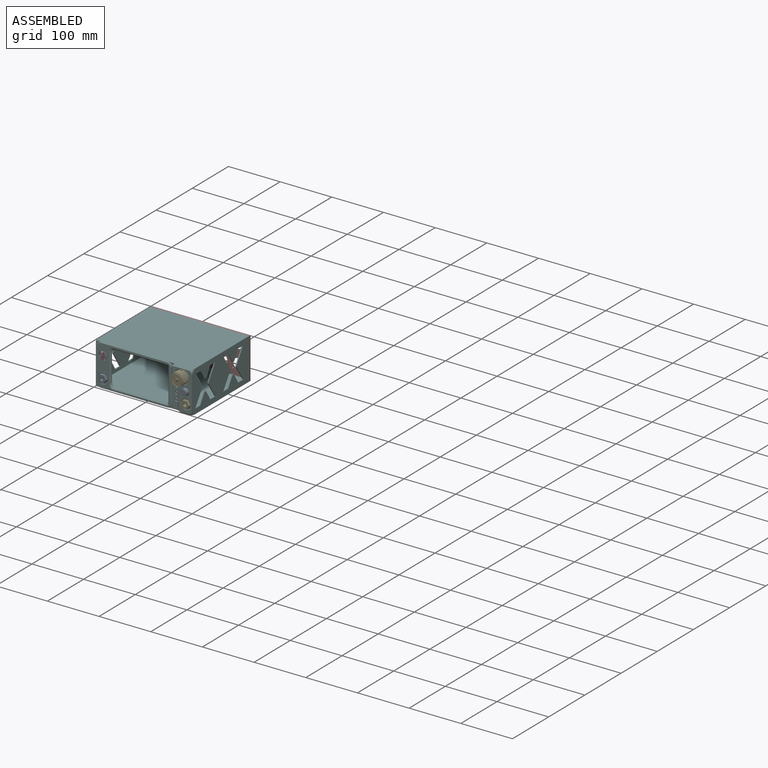
[diagram: assembled view]
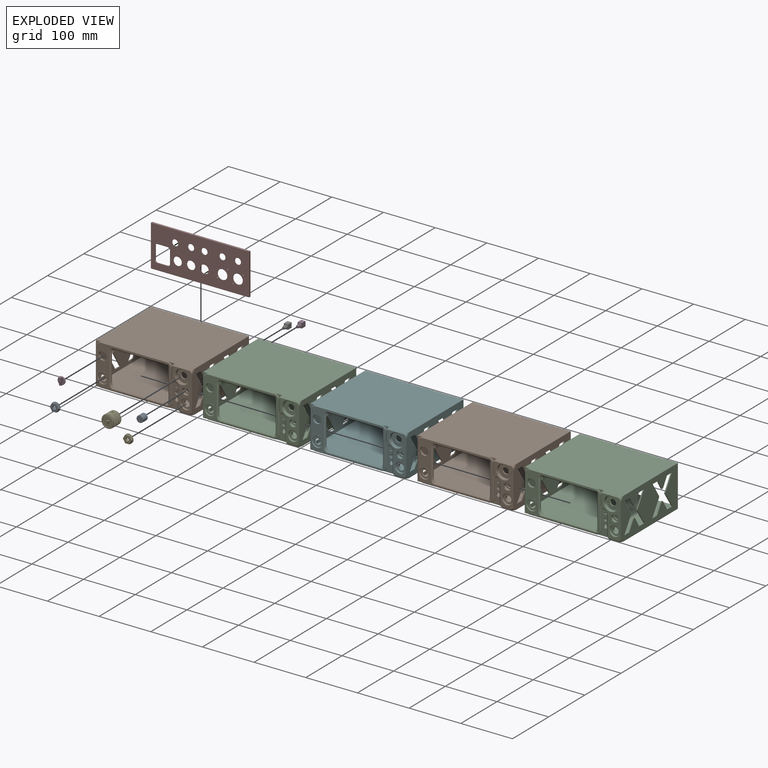
[diagram: exploded view]
GUIDED TOUR — MATED ASSEMBLY (Onshape document 111cd179a44cc27a1ac8d6d5, AutoMate assembly 111cd179a44cc27a1ac8d6d5_bd920d4d7e22fbe078162569_21dfc117eb1a0b96625b1ef3_default)

This assembly has 13 components, labeled P0..P12 below (a component is one placed occurrence of a part; the same part can appear more than once), held together by 8 mates. A mate is a constraint between two components; its type names the relative motion it leaves free:
  FASTENED — locks the two components together rigidly (no relative motion),
  SLIDER — leaves translation along the listed axis free.
Axis/direction vectors are unit vectors and 'through' points are millimeter coordinates, both in the assembly's world frame.

MATES
  1. FASTENED "Fastened 2": P11 <-> P1, direction (0.000, 1.000, 0.000) through (-80.38, 0.00, 16.98) mm
  2. SLIDER "Slider 5": P3 <-> P1, axis (0.000, -1.000, 0.000) through (61.45, -2.00, -22.34) mm
  3. SLIDER "Slider 6": P4 <-> P1, axis (0.000, 1.000, 0.000) through (75.67, -2.00, 23.46) mm
  4. FASTENED "Fastened 1": P7 <-> P1, direction (0.000, 0.000, 1.000) through (-95.00, 150.00, 0.00) mm
  5. SLIDER "Slider 4": P6 <-> P1, axis (0.000, -1.000, 0.000) through (61.43, -2.00, -10.02) mm
  6. SLIDER "Slider 2": P8 <-> P1, axis (0.000, 1.000, 0.000) through (82.98, -2.00, -0.24) mm
  7. SLIDER "Slider 3": P12 <-> P1, axis (0.000, 1.000, 0.000) through (82.97, -6.00, -22.51) mm
  8. SLIDER "Slider 1": P0 <-> P1, axis (0.000, 1.000, 0.000) through (-80.38, -2.00, -22.56) mm

ASSEMBLY ORDER
  1. P1 — the base component [order heuristic]
  2. P2 — core [order heuristic]
  3. P5 — core [order heuristic]
  4. P8 — core [order heuristic]
  5. P9 — core [order heuristic]
  6. P10 — core [order heuristic]
  7. P6 [order verified]
  8. P3 [order verified]
  9. P11 [order verified]
  10. P0 [order verified]
  11. P12 [order verified]
  12. P4 [order verified]
  13. P7 [order verified]
Order-tag legend:
  [order verified] — this step's position reverses a verified removal order: the component was checked to insert without passing through the ones already placed.
  [order heuristic] — the first 6 components form the assembly's core: parts whose collision-free extraction could not be verified, listed in mate-graph order.

Of the 13 components, 1 carries the full construction recipe — the FeatureScript program that regenerates the part's solid from scratch; the rest are supplied as boundary geometry only.
Because this assembly has more than 12 components, the tour below covers the 12 most significant ones individually (every recipe-attached component first, then the largest by part volume), in assembly order; the remaining 1 are summarized together in a grouped section at the end.
Each toured component is shown spotlighted twice — in the assembled view, then in the exploded view, where a leader line traces a displaced component back to its assembled socket (saturated green if recipe-attached, orange if geometry-only; every other component desaturated gray) — followed by its recipe or geometry summary and the mates that hold it.
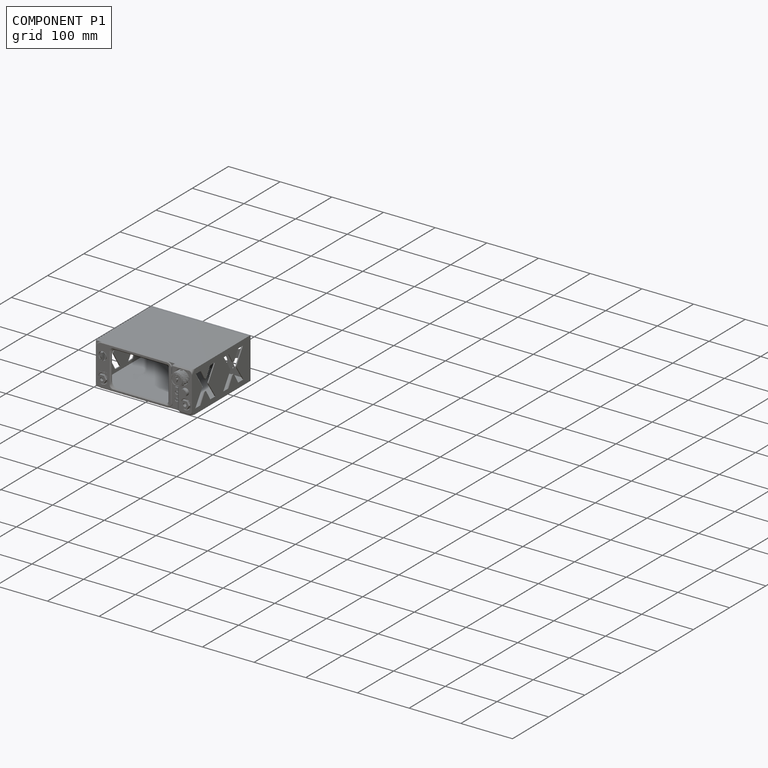
[diagram: component P1 — assembled]
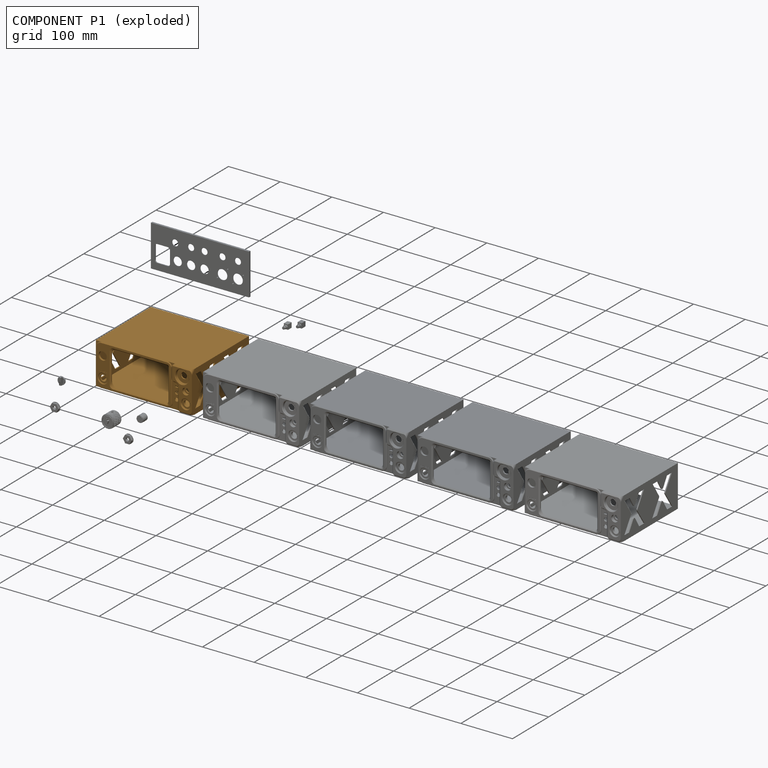
[diagram: component P1 — exploded]
COMPONENT P1 — geometry summary (no construction recipe available for this part):
  bounding box: 190.1 x 161.6 x 86.1 mm
  B-rep topology: 1 solid, 462 faces, 2690 edges
  volume: 290501 mm^3 (11% of its bounding box)
Held by: FASTENED mate "Fastened 2" to P11; SLIDER mate "Slider 5" to P3; SLIDER mate "Slider 6" to P4; FASTENED mate "Fastened 1" to P7; SLIDER mate "Slider 4" to P6; SLIDER mate "Slider 2" to P8; SLIDER mate "Slider 3" to P12; SLIDER mate "Slider 1" to P0.
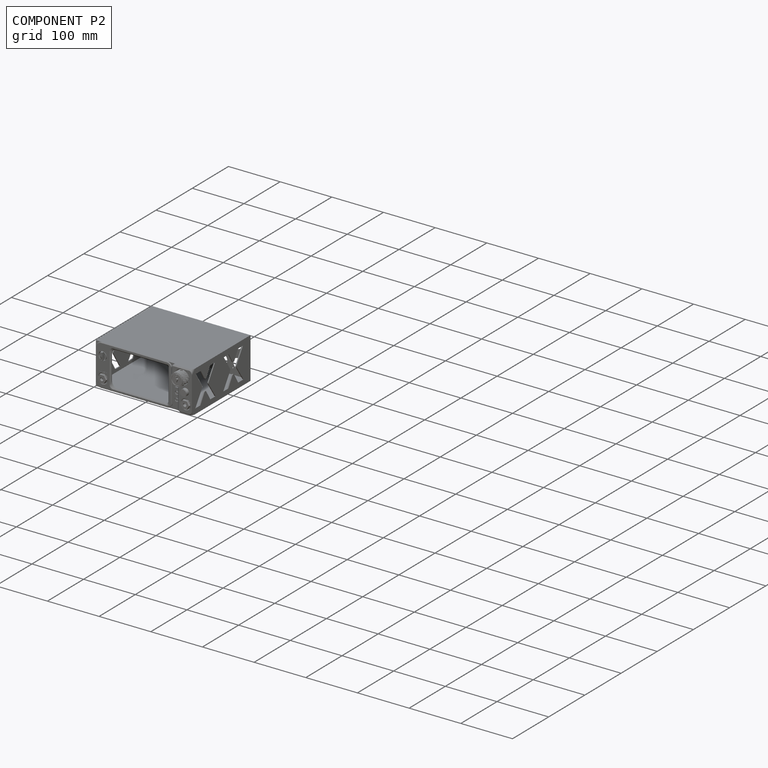
[diagram: component P2 — assembled]
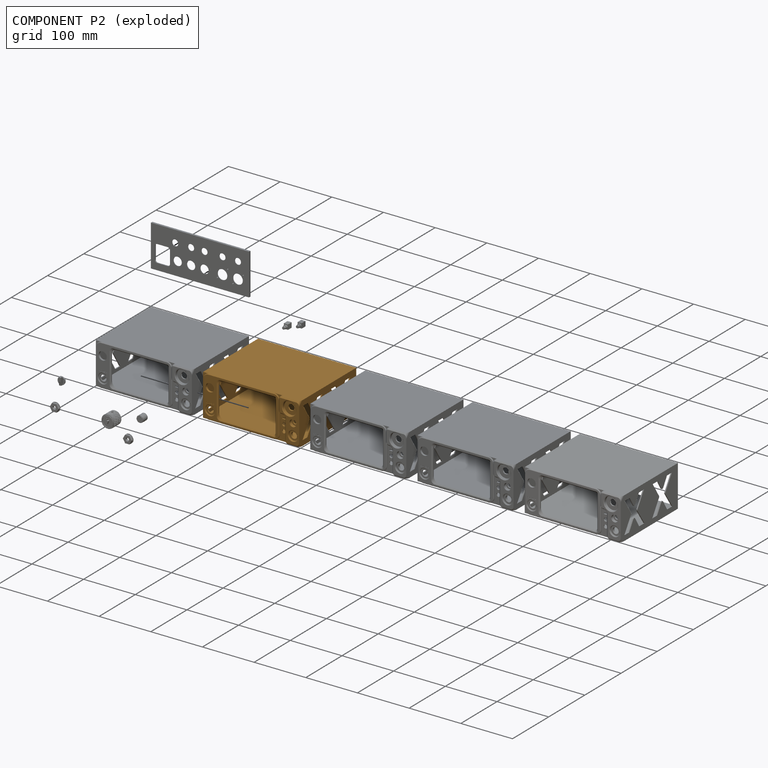
[diagram: component P2 — exploded]
COMPONENT P2 — geometry summary (no construction recipe available for this part):
  bounding box: 190.1 x 161.6 x 86.1 mm
  B-rep topology: 1 solid, 462 faces, 2690 edges
  volume: 290501 mm^3 (11% of its bounding box)
Held by: no mates (free).
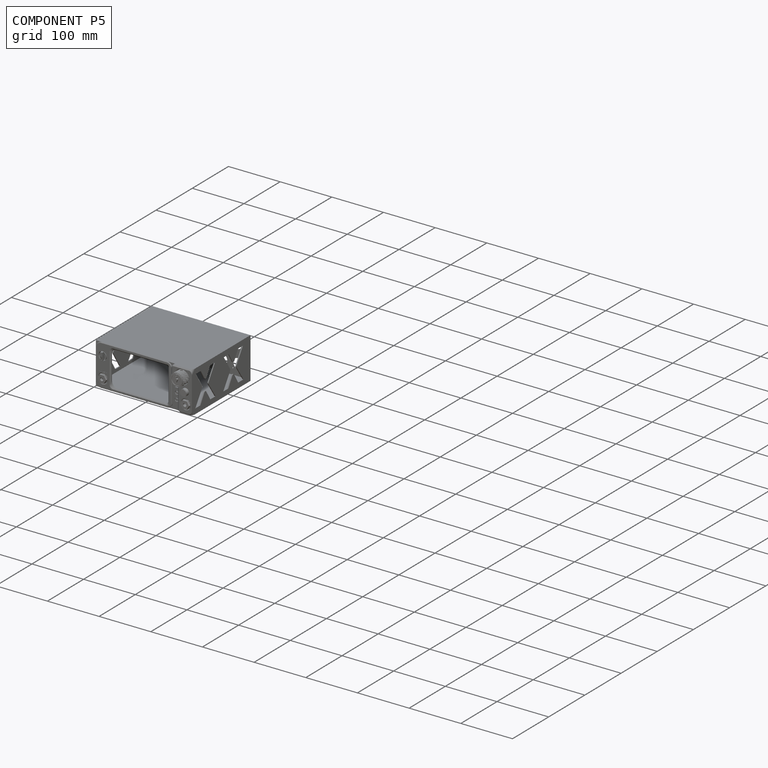
[diagram: component P5 — assembled]
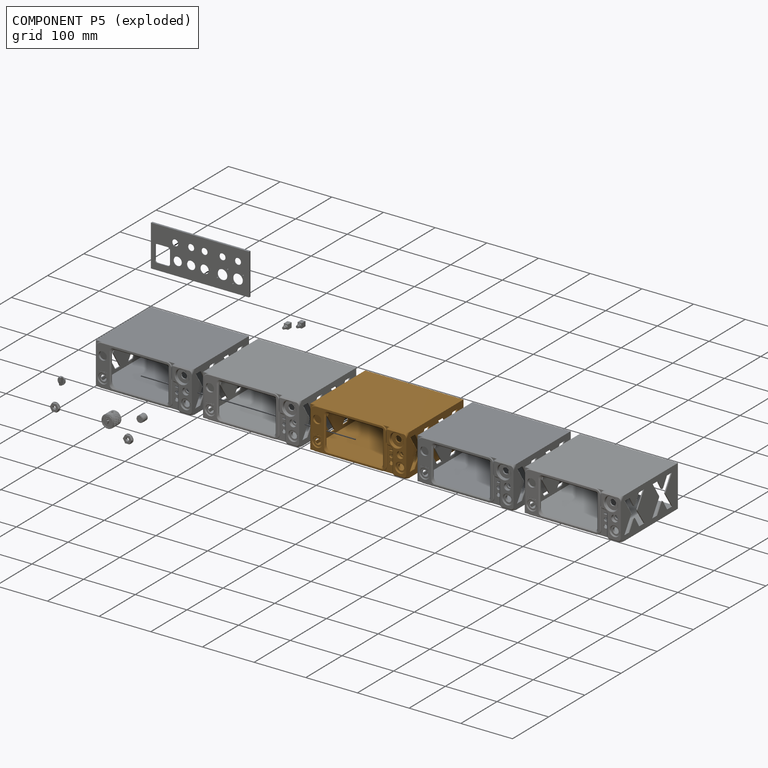
[diagram: component P5 — exploded]
COMPONENT P5 — geometry summary (no construction recipe available for this part):
  bounding box: 190.1 x 161.6 x 86.1 mm
  B-rep topology: 1 solid, 462 faces, 2690 edges
  volume: 290501 mm^3 (11% of its bounding box)
Held by: no mates (free).
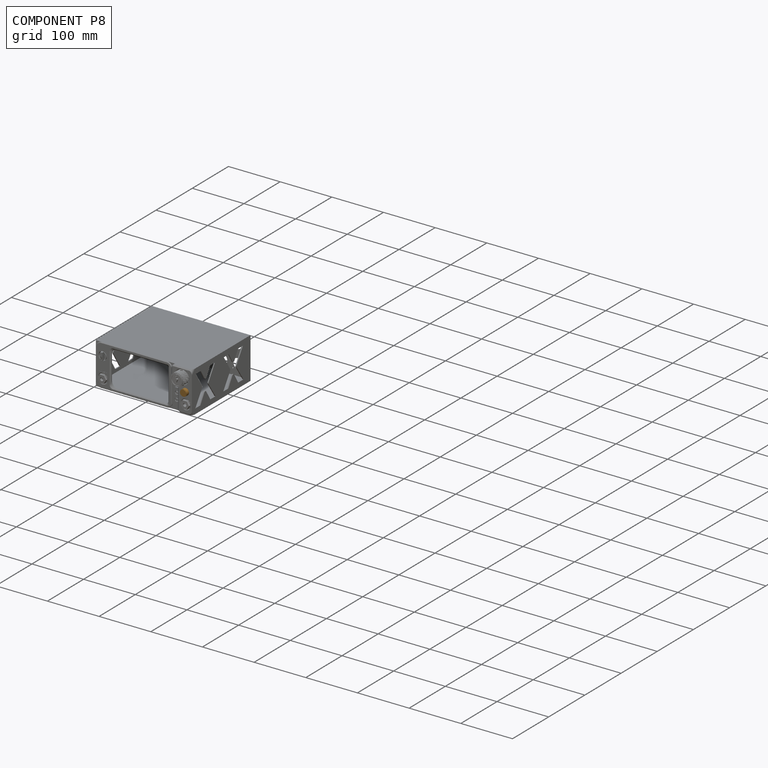
[diagram: component P8 — assembled]
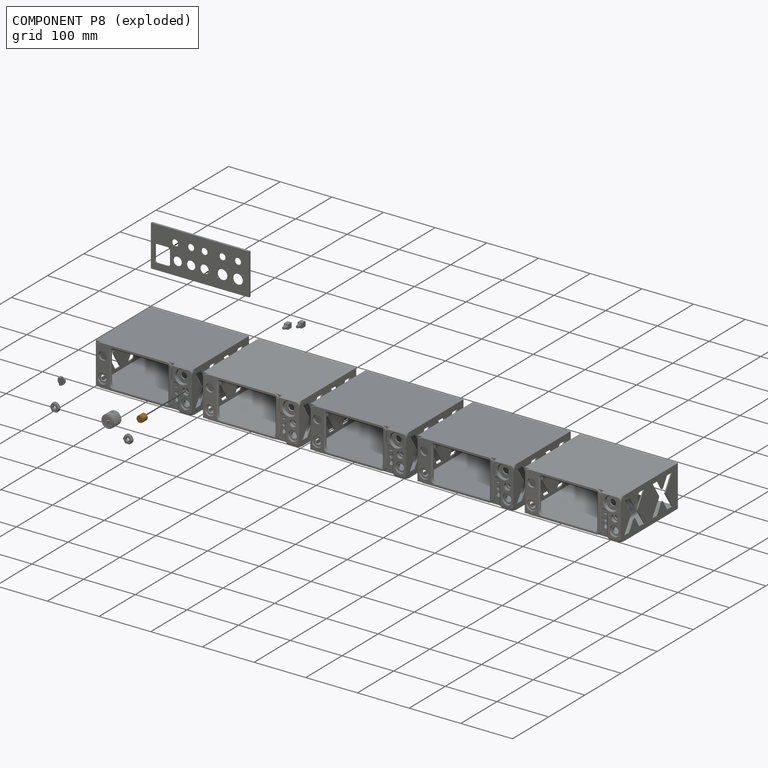
[diagram: component P8 — exploded]
COMPONENT P8 — geometry summary (no construction recipe available for this part):
  bounding box: 13.0 x 13.0 x 13.0 mm
  B-rep topology: 1 solid, 11 faces, 52 edges
  volume: 1611 mm^3 (73% of its bounding box)
Held by: SLIDER mate "Slider 2" to P1.
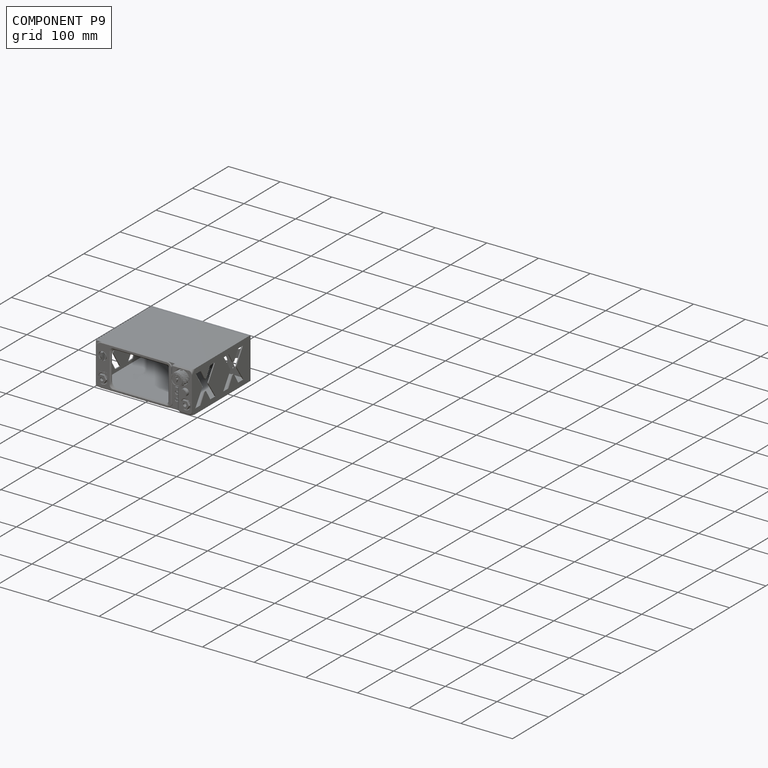
[diagram: component P9 — assembled]
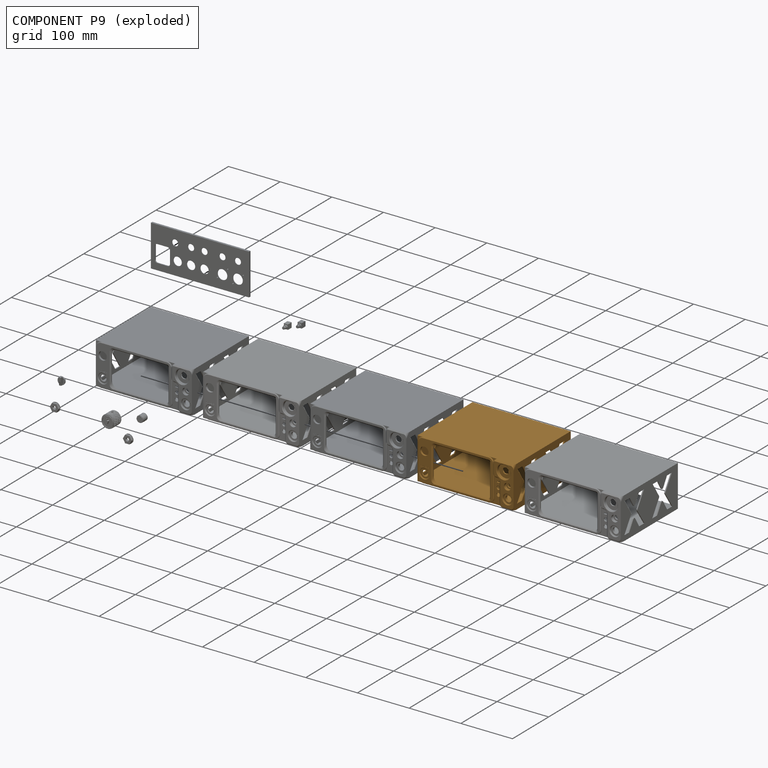
[diagram: component P9 — exploded]
COMPONENT P9 — geometry summary (no construction recipe available for this part):
  bounding box: 190.1 x 161.6 x 86.1 mm
  B-rep topology: 1 solid, 462 faces, 2690 edges
  volume: 290501 mm^3 (11% of its bounding box)
Held by: no mates (free).
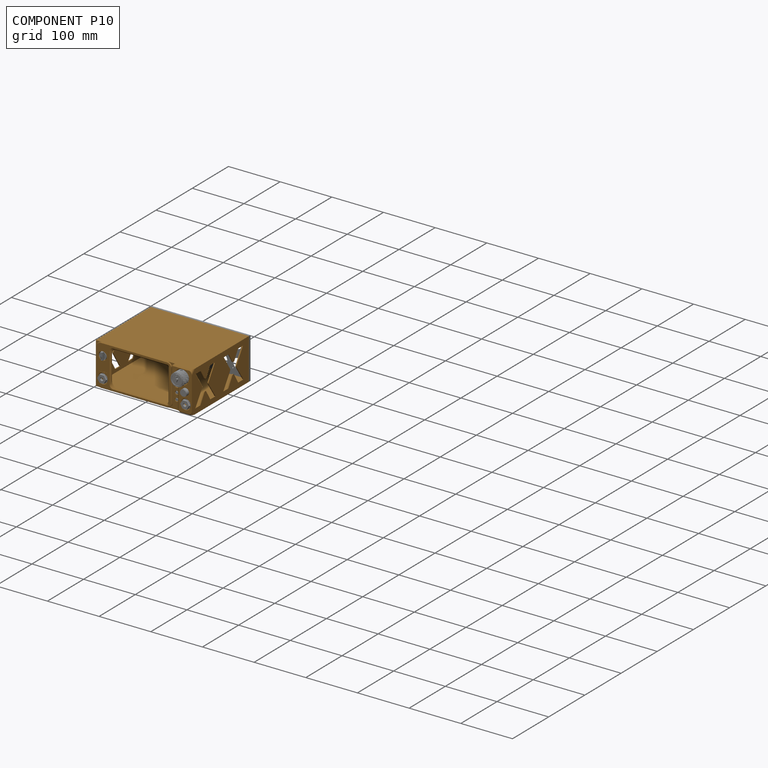
[diagram: component P10 — assembled]
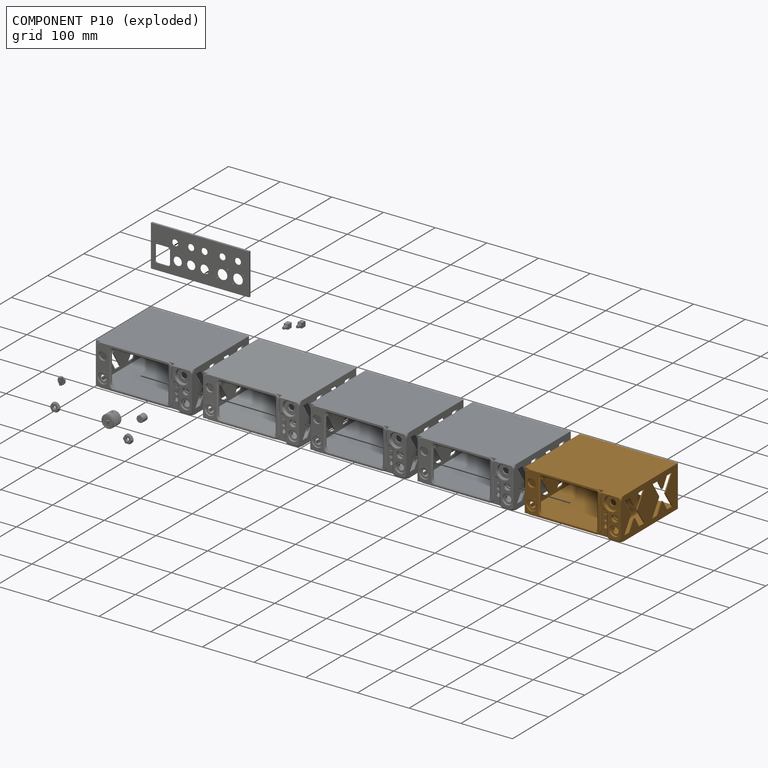
[diagram: component P10 — exploded]
COMPONENT P10 — geometry summary (no construction recipe available for this part):
  bounding box: 190.1 x 161.6 x 86.1 mm
  B-rep topology: 1 solid, 462 faces, 2690 edges
  volume: 290501 mm^3 (11% of its bounding box)
Held by: no mates (free).
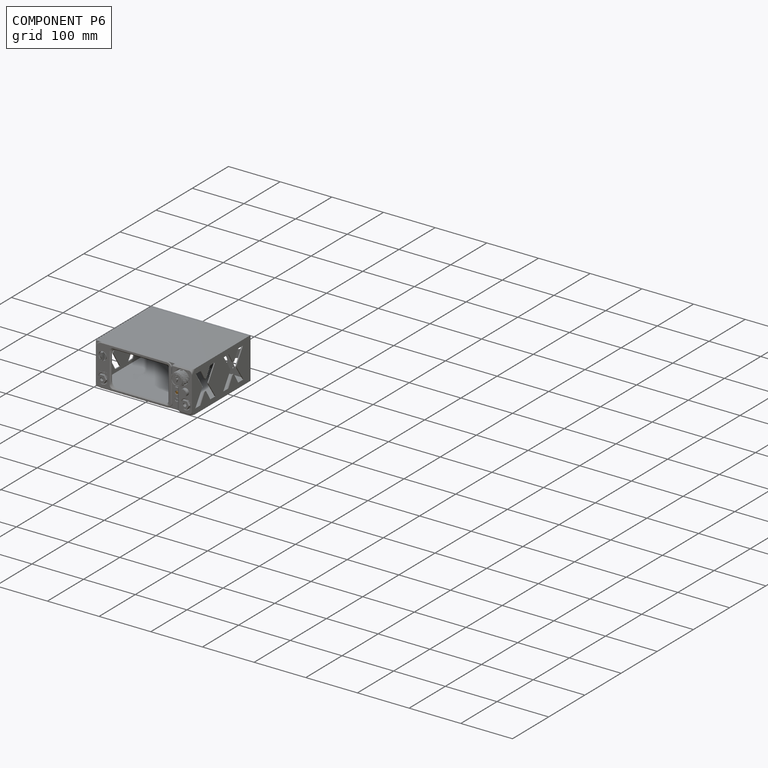
[diagram: component P6 — assembled]
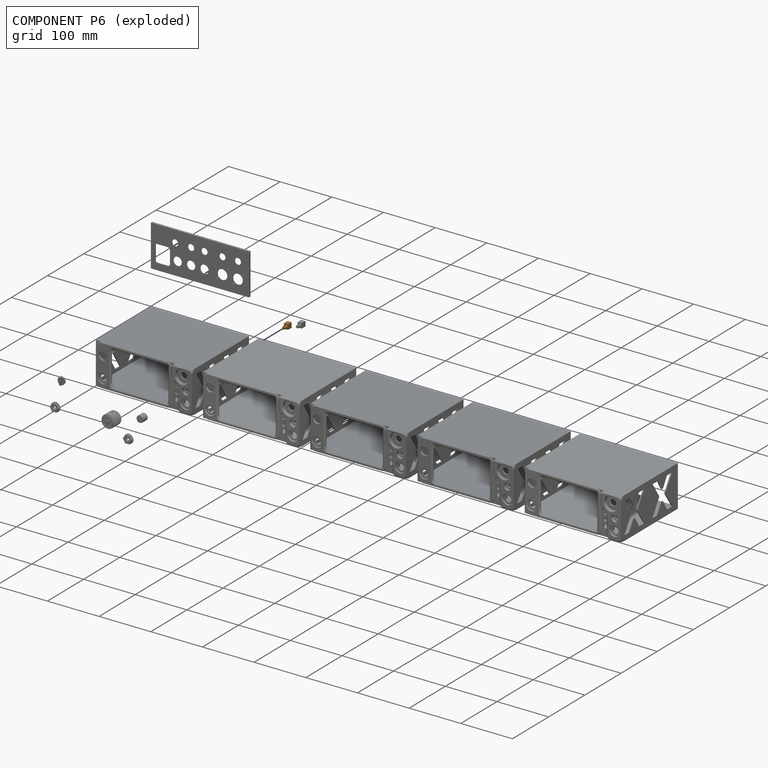
[diagram: component P6 — exploded]
COMPONENT P6 — geometry summary (no construction recipe available for this part):
  bounding box: 17.1 x 9.5 x 8.0 mm
  B-rep topology: 1 solid, 12 faces, 48 edges
  volume: 956 mm^3 (74% of its bounding box)
  symmetry: mirror-symmetric across its x mid-plane
Held by: SLIDER mate "Slider 4" to P1.
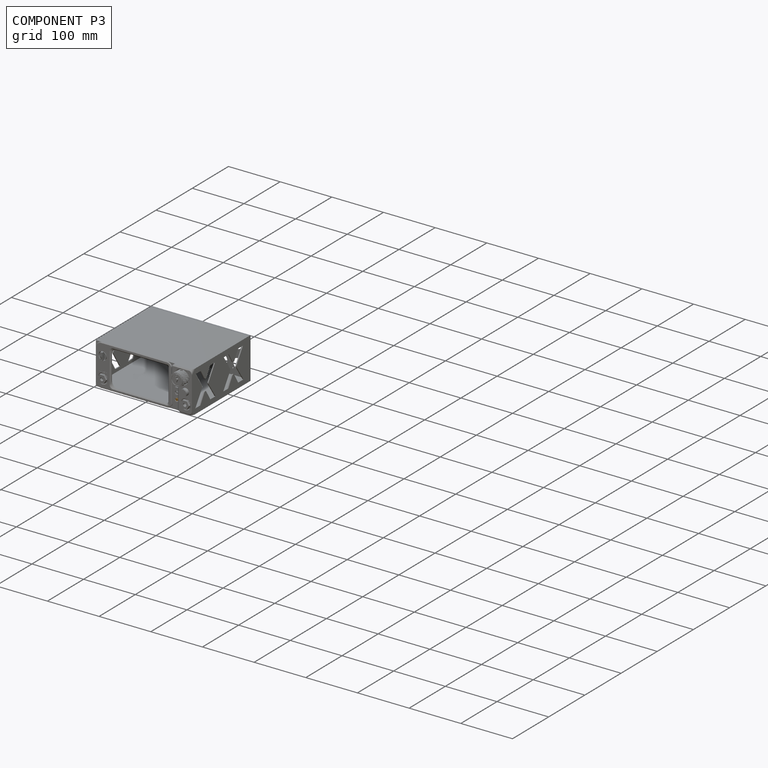
[diagram: component P3 — assembled]
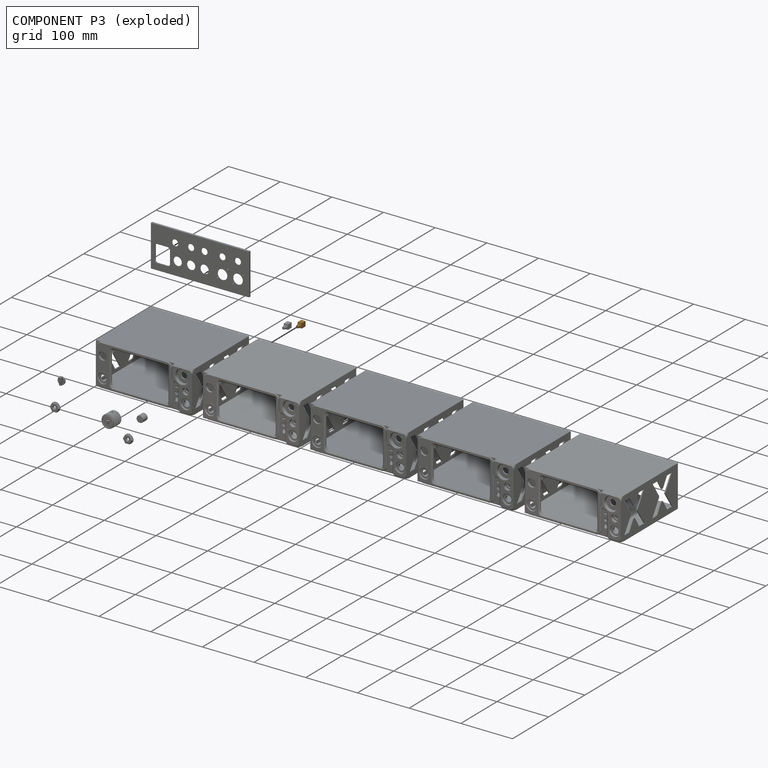
[diagram: component P3 — exploded]
COMPONENT P3 — geometry summary (no construction recipe available for this part):
  bounding box: 17.1 x 9.5 x 8.0 mm
  B-rep topology: 1 solid, 12 faces, 48 edges
  volume: 956 mm^3 (74% of its bounding box)
  symmetry: mirror-symmetric across its x mid-plane
Held by: SLIDER mate "Slider 5" to P1.
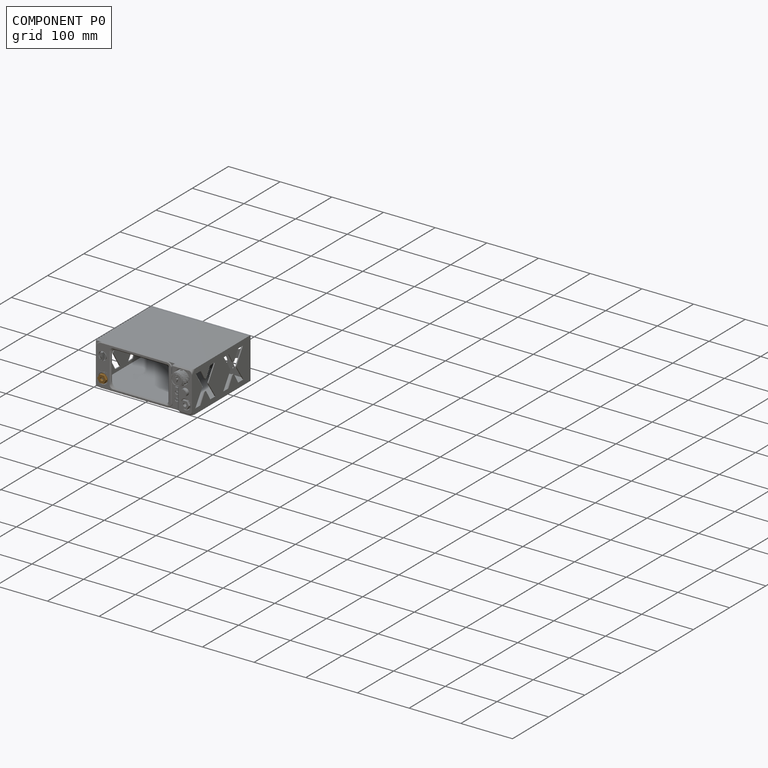
[diagram: component P0 — assembled]
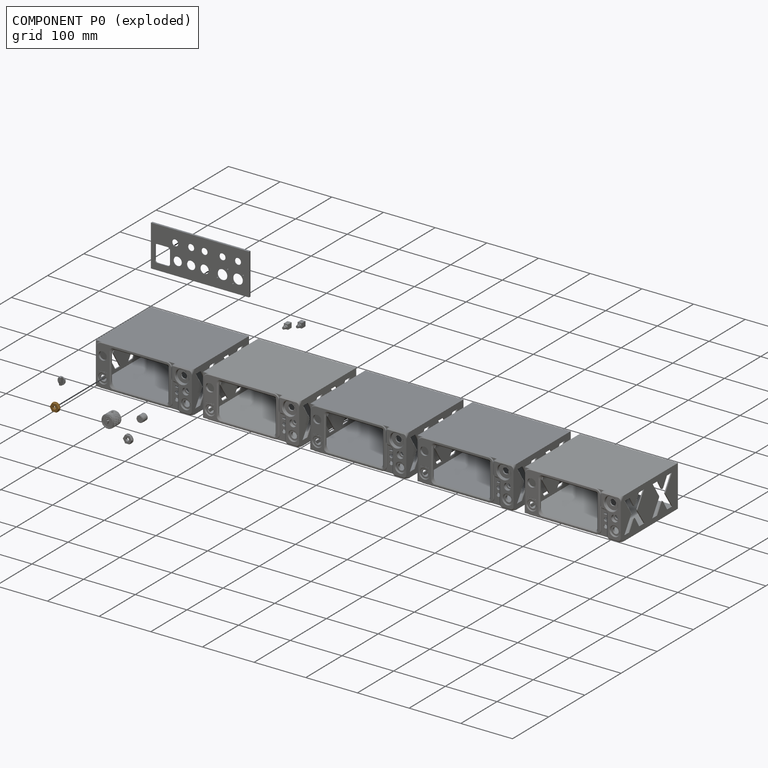
[diagram: component P0 — exploded]
COMPONENT P0 — geometry summary (no construction recipe available for this part):
  bounding box: 17.2 x 17.2 x 4.9 mm
  B-rep topology: 1 solid, 11 faces, 50 edges
  volume: 817 mm^3 (57% of its bounding box)
  symmetry: 6-fold rotationally symmetric about the z axis; mirror-symmetric across its x mid-plane, y mid-plane
Held by: SLIDER mate "Slider 1" to P1.
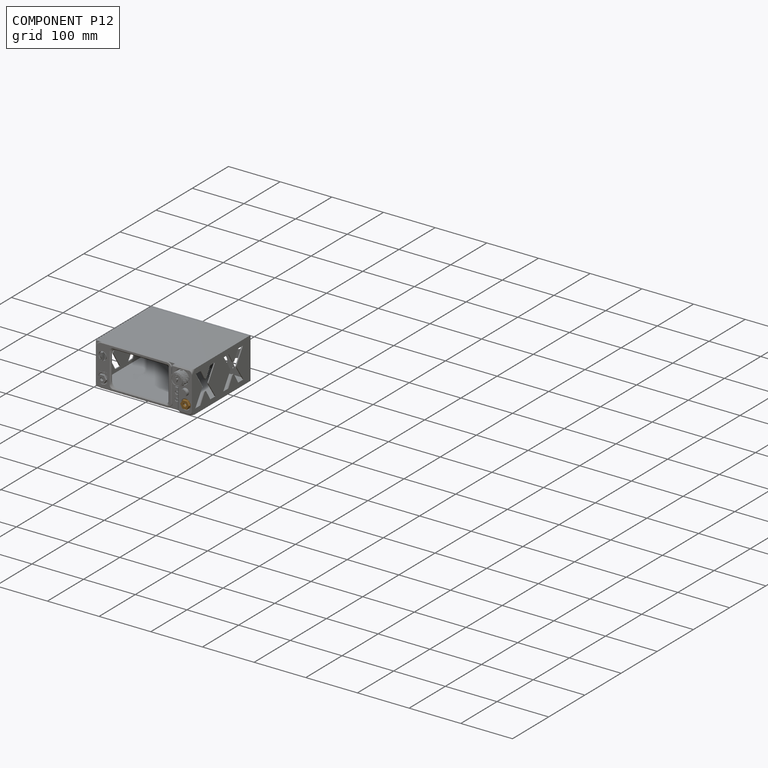
[diagram: component P12 — assembled]
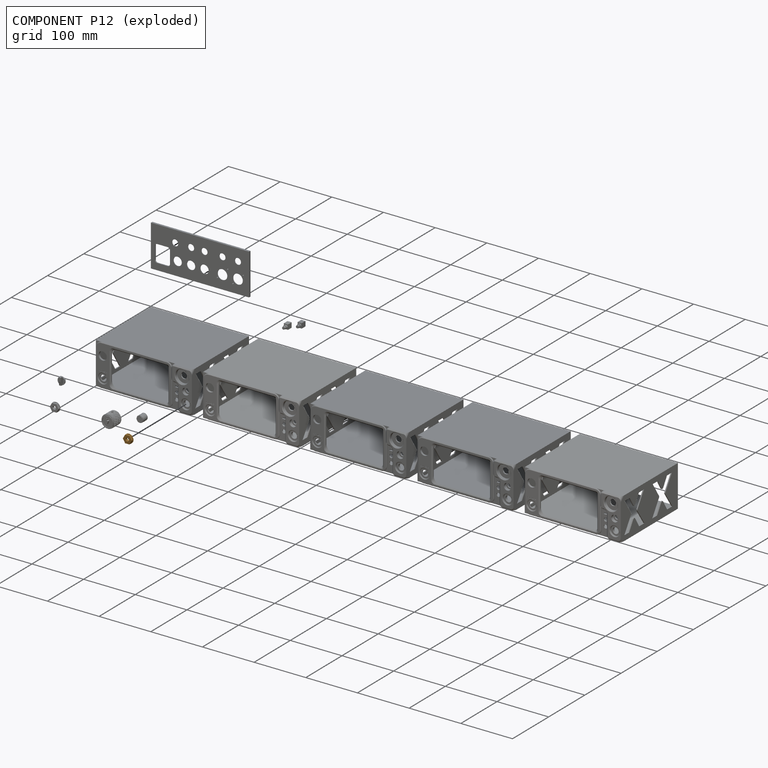
[diagram: component P12 — exploded]
COMPONENT P12 — geometry summary (no construction recipe available for this part):
  bounding box: 17.2 x 17.2 x 4.9 mm
  B-rep topology: 1 solid, 11 faces, 50 edges
  volume: 817 mm^3 (57% of its bounding box)
  symmetry: 6-fold rotationally symmetric about the z axis; mirror-symmetric across its x mid-plane, y mid-plane
Held by: SLIDER mate "Slider 3" to P1.
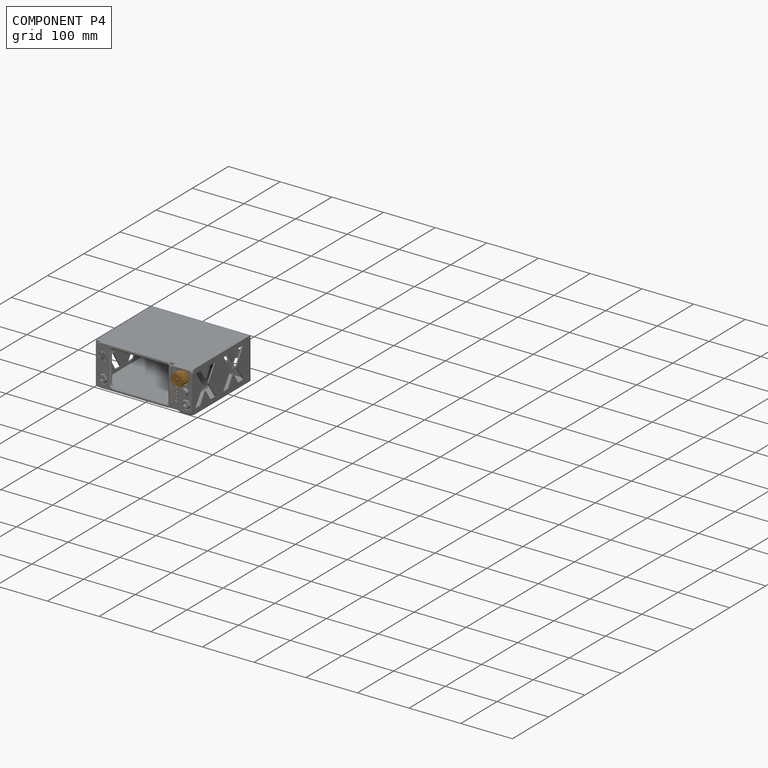
[diagram: component P4 — assembled]
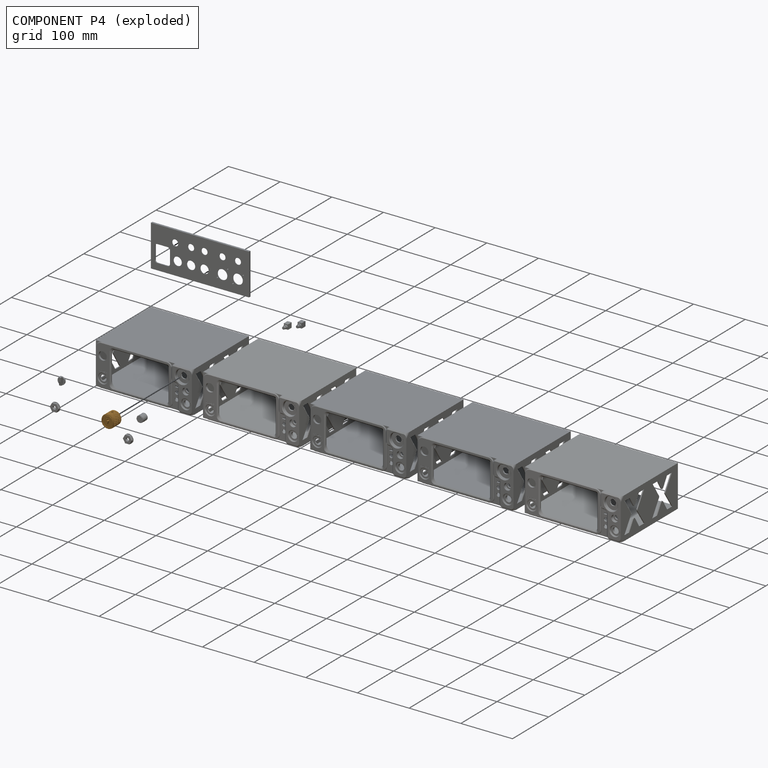
[diagram: component P4 — exploded]
COMPONENT P4 — geometry summary (no construction recipe available for this part):
  bounding box: 25.2 x 25.2 x 23.0 mm
  B-rep topology: 1 solid, 102 faces, 574 edges
  volume: 8300 mm^3 (57% of its bounding box)
Held by: SLIDER mate "Slider 6" to P1.
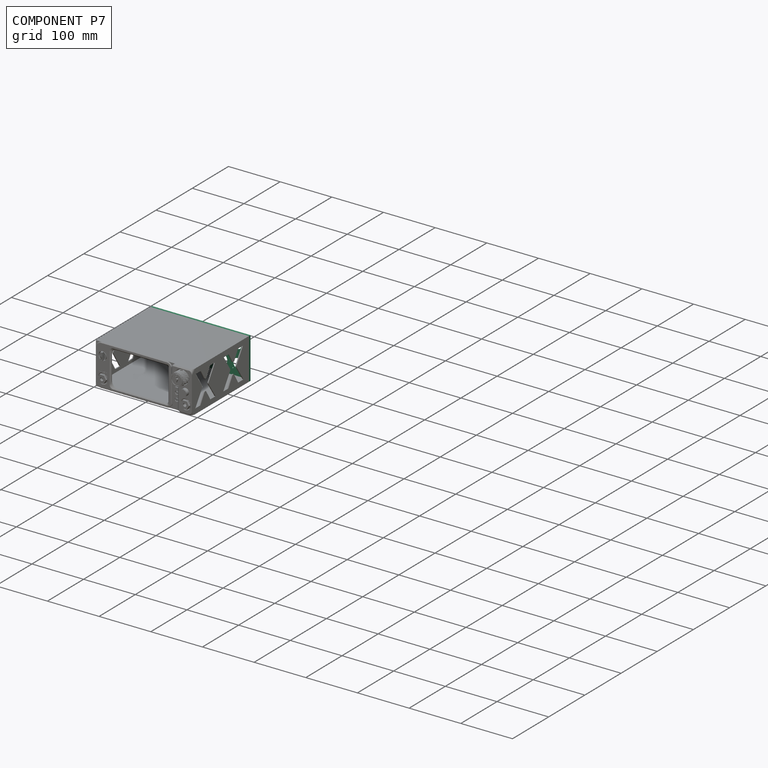
[diagram: component P7 — assembled]
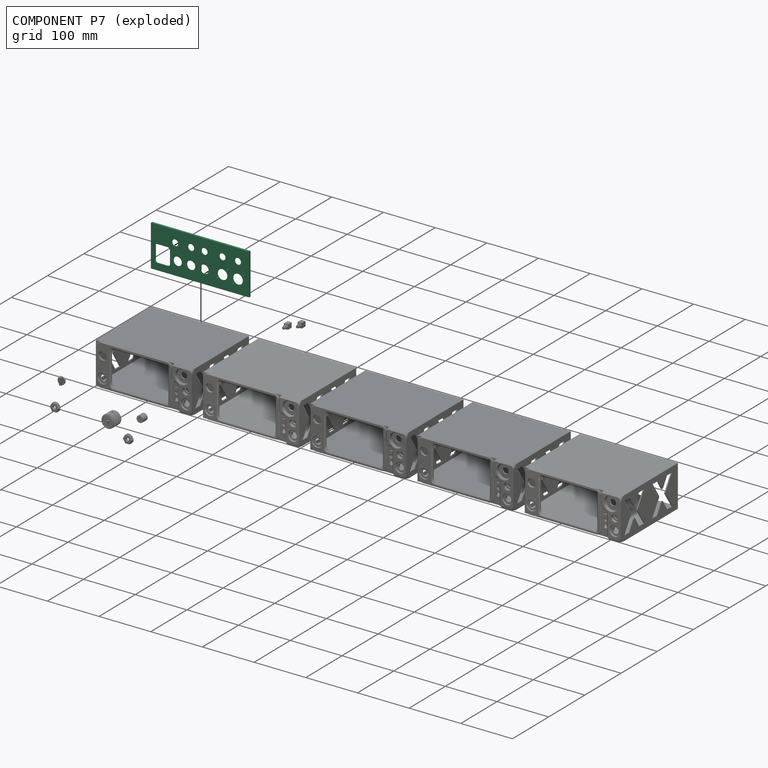
[diagram: component P7 — exploded]
COMPONENT P7 — recipe-attached (CADFS 00898573, mesh-verified: the recipe's output STEP matches this component's geometry to below the mesh-comparison resolution (tessellation chordal tolerance ~0.309 mm)).
Held by: FASTENED mate "Fastened 1" to P1.
Construction recipe (FeatureScript — the CAD program that rebuilds this solid; sketch coordinates are in the units given by the * unit suffixes, e.g. mm):

FeatureScript 1540;
import(path : "onshape/std/geometry.fs", version : "1540.0");
import(path : "onshape/std/common.fs", version : "1540.0");
const mm = millimeter;
const VERTEX = EntityType.VERTEX;
const EDGE = EntityType.EDGE;
const FACE = EntityType.FACE;
const BODY = EntityType.BODY;
function v(x, y){return vector(x, y);}
function OD(order){return orderDisambiguation(order);}
function OSD(set){return originalSetDisambiguation(set);}
function TD(topology){return topologyDisambiguation(topology);}
function TDD(query){return trueDependencyDisambiguation(query);}
function sQuery(a, b, c) {return sketchEntityQuery(a, b, c);}

annotation { "Feature Type Name" : "Feature", "Feature Type Description" : "" }
export const myFeature = defineFeature(function(context is Context, id is Id, definition is map)
    precondition{}
    {
        {
            var Q0;
            Q0=qCreatedBy(makeId("Front.planeOp"),FACE);
            var sketch = newSketch(context, id + "F0", { "sketchPlane" : qUnion([Q0])});
            skLineSegment(sketch, "E0.bottom", {"start": v(-100, -40) * mm, "end": v(90, -40) * mm});
            skLineSegment(sketch, "E0.top", {"start": v(-100, 40) * mm, "end": v(90, 40) * mm});
            skLineSegment(sketch, "E0.left", {"start": v(-100, -40) * mm, "end": v(-100, 40) * mm});
            skLineSegment(sketch, "E0.right", {"start": v(90, -40) * mm, "end": v(90, 40) * mm});
            skCircle(sketch, "E1.0", {"center": v(-78.43, 17.2) * mm, "radius": 6 * mm});
            skCircle(sketch, "E2.0", {"center": v(-48.43, 17.2) * mm, "radius": 6 * mm});
            skCircle(sketch, "E3.0", {"center": v(43.02, 17.17) * mm, "radius": 6 * mm});
            skCircle(sketch, "E4.0", {"center": v(-13.73, -13.94) * mm, "radius": 8.15 * mm});
            skCircle(sketch, "E5.0", {"center": v(12.27, -13.94) * mm, "radius": 8.15 * mm});
            skCircle(sketch, "E6.0", {"center": v(38.27, -13.94) * mm, "radius": 8.15 * mm});
            skCircle(sketch, "E7.0", {"center": v(-13.73, 17.2) * mm, "radius": 6 * mm});
            skCircle(sketch, "E8.0", {"center": v(-78.43, -13.94) * mm, "radius": 9.5 * mm});
            skCircle(sketch, "E9.0", {"center": v(-48.43, -13.94) * mm, "radius": 9.5 * mm});
            skCircle(sketch, "E10", {"center": v(-88.33, -4.04) * mm, "radius": 1.15 * mm});
            skCircle(sketch, "E11", {"center": v(-68.53, -23.84) * mm, "radius": 1.15 * mm});
            skCircle(sketch, "E12", {"center": v(-58.33, -1.5) * mm, "radius": 1.15 * mm});
            skCircle(sketch, "E13", {"center": v(-38.53, -21.3) * mm, "radius": 1.15 * mm});
            skCircle(sketch, "E14.0", {"center": v(12.27, 17.2) * mm, "radius": 6 * mm});
            skLineSegment(sketch, "E15.bottom", {"start": v(52.86, 5.92) * mm, "end": v(82.36, 5.92) * mm});
            skLineSegment(sketch, "E15.top", {"start": v(52.86, -27.38) * mm, "end": v(82.36, -27.38) * mm});
            skLineSegment(sketch, "E15.left", {"start": v(52.86, 5.92) * mm, "end": v(52.86, -27.38) * mm});
            skLineSegment(sketch, "E15.right", {"start": v(82.36, 5.92) * mm, "end": v(82.36, -27.38) * mm});
            skLineSegment(sketch, "E16", {"start": v(12.27, 17.2) * mm, "end": v(69.31, 17.2) * mm});
            skLineSegment(sketch, "E17", {"start": v(-48.43, -13.94) * mm, "end": v(-96.64, -13.94) * mm});
            skLineSegment(sketch, "E18", {"start": v(-78.43, 17.2) * mm, "end": v(-78.43, -29.98) * mm});
            skSolve(sketch);
        }
        {
            var Q0;
            {var subQ4=sQuery(id+"F0.wireOp",EDGE,"E0.top");Q0=makeQuery(id+"F0.imprint","IMPRINT",FACE,{"disambiguationData":[TD([[makeQuery(id+"F0.imprint","IMPRINT",EDGE,{"derivedFrom":subQ4}),-1.0]])]});}
            var Q1;
            Q1=makeQuery(id+"F0.imprint","IMPRINT",FACE,{"disambiguationData":[TD([[makeQuery(id+"F0.imprint","IMPRINT",EDGE,{"derivedFrom":sQuery(id+"F0.wireOp",EDGE,"E1.0")}),-1.0]])]});
            extrude(context, id + "F1", {"entities" : qUnion([Q0, Q1]), "depth" : 2 * mm, "offsetDistance" : 25 * mm});
        }
        {
            var Q0;
            Q0=makeQuery(id+"F1.opExtrude","CAP_FACE",FACE,{"disambiguationData":[OSD([sQuery(id+"F0.wireOp",EDGE,"E0.bottom"),sQuery(id+"F0.wireOp",EDGE,"E0.top"),sQuery(id+"F0.wireOp",EDGE,"E0.left"),sQuery(id+"F0.wireOp",EDGE,"E0.right"),sQuery(id+"F0.wireOp",EDGE,"E1.0"),sQuery(id+"F0.wireOp",EDGE,"E2.0"),sQuery(id+"F0.wireOp",EDGE,"E3.0"),sQuery(id+"F0.wireOp",EDGE,"E4.0"),sQuery(id+"F0.wireOp",EDGE,"E5.0"),sQuery(id+"F0.wireOp",EDGE,"E6.0"),sQuery(id+"F0.wireOp",EDGE,"E7.0"),sQuery(id+"F0.wireOp",EDGE,"E8.0"),sQuery(id+"F0.wireOp",EDGE,"E9.0"),sQuery(id+"F0.wireOp",EDGE,"E10"),sQuery(id+"F0.wireOp",EDGE,"E11"),sQuery(id+"F0.wireOp",EDGE,"E12"),sQuery(id+"F0.wireOp",EDGE,"E13"),sQuery(id+"F0.wireOp",EDGE,"E14.0"),sQuery(id+"F0.wireOp",EDGE,"E15.bottom"),sQuery(id+"F0.wireOp",EDGE,"E15.top"),sQuery(id+"F0.wireOp",EDGE,"E15.left"),sQuery(id+"F0.wireOp",EDGE,"E15.right")])],"isStart":false});
            var sketch = newSketch(context, id + "F2", { "sketchPlane" : qUnion([Q0])});
            skLineSegment(sketch, "E19.bottom", {"start": v(82.36, 32.98) * mm, "end": v(-92.36, 32.98) * mm});
            skLineSegment(sketch, "E19.top", {"start": v(82.36, -32.97) * mm, "end": v(-92.36, -32.98) * mm});
            skLineSegment(sketch, "E19.left", {"start": v(82.36, 32.98) * mm, "end": v(82.36, -32.97) * mm});
            skLineSegment(sketch, "E19.right", {"start": v(-92.36, 32.98) * mm, "end": v(-92.36, -32.98) * mm});
            skSolve(sketch);
        }
        {
            var Q0;
            Q0=makeQuery(id+"F2.imprint","IMPRINT",FACE,{"disambiguationData":[TD([[makeQuery(id+"F2.imprint","IMPRINT",EDGE,{"derivedFrom":sQuery(id+"F2.wireOp",EDGE,"E19.bottom")}),-1.0]])]});
            extrude(context, id + "F3", {"entities" : qUnion([Q0]), "operationType" : NewBodyOperationType.ADD, "depth" : 2 * mm, "offsetDistance" : 25 * mm});
        }
        {
            var Q0;
            Q0=makeQuery(id+"F3.opExtrude","CAP_EDGE",EDGE,{"disambiguationData":[OSD([sQuery(id+"F2.wireOp",EDGE,"E19.bottom")])],"isStart":false});
            var Q1;
            Q1=makeQuery(id+"F3.opExtrude","CAP_EDGE",EDGE,{"disambiguationData":[OSD([sQuery(id+"F2.wireOp",EDGE,"E19.right")])],"isStart":false});
            var Q2;
            Q2=makeQuery(id+"F3.opExtrude","CAP_EDGE",EDGE,{"disambiguationData":[OSD([sQuery(id+"F2.wireOp",EDGE,"E19.top")])],"isStart":false});
            var Q3;
            Q3=makeQuery(id+"F3.opExtrude","CAP_EDGE",EDGE,{"disambiguationData":[OSD([sQuery(id+"F2.wireOp",EDGE,"E19.left")])],"isStart":false});
            chamfer(context, id + "F4", {"entities" : qUnion([Q0, Q1, Q2, Q3]), "width" : 1 * mm, "tangentPropagation" : true});
        }
        {
            var Q0;
            Q0=makeQuery(id+"F1.opExtrude","CAP_EDGE",EDGE,{"disambiguationData":[OSD([sQuery(id+"F0.wireOp",EDGE,"E1.0")])],"isStart":false});
            var Q1;
            Q1=makeQuery(id+"F1.opExtrude","CAP_EDGE",EDGE,{"disambiguationData":[OSD([sQuery(id+"F0.wireOp",EDGE,"E8.0")])],"isStart":false});
            var Q2;
            Q2=makeQuery(id+"F1.opExtrude","CAP_EDGE",EDGE,{"disambiguationData":[OSD([sQuery(id+"F0.wireOp",EDGE,"E9.0")])],"isStart":false});
            var Q3;
            Q3=makeQuery(id+"F1.opExtrude","CAP_EDGE",EDGE,{"disambiguationData":[OSD([sQuery(id+"F0.wireOp",EDGE,"E4.0")])],"isStart":false});
            var Q4;
            Q4=makeQuery(id+"F1.opExtrude","CAP_EDGE",EDGE,{"disambiguationData":[OSD([sQuery(id+"F0.wireOp",EDGE,"E5.0")])],"isStart":false});
            var Q5;
            Q5=makeQuery(id+"F1.opExtrude","CAP_EDGE",EDGE,{"disambiguationData":[OSD([sQuery(id+"F0.wireOp",EDGE,"E2.0")])],"isStart":false});
            var Q6;
            Q6=makeQuery(id+"F1.opExtrude","CAP_EDGE",EDGE,{"disambiguationData":[OSD([sQuery(id+"F0.wireOp",EDGE,"E7.0")])],"isStart":false});
            var Q7;
            Q7=makeQuery(id+"F1.opExtrude","CAP_EDGE",EDGE,{"disambiguationData":[OSD([sQuery(id+"F0.wireOp",EDGE,"E14.0")])],"isStart":false});
            var Q8;
            Q8=makeQuery(id+"F1.opExtrude","CAP_EDGE",EDGE,{"disambiguationData":[OSD([sQuery(id+"F0.wireOp",EDGE,"E3.0")])],"isStart":false});
            var Q9;
            Q9=makeQuery(id+"F1.opExtrude","CAP_EDGE",EDGE,{"disambiguationData":[OSD([sQuery(id+"F0.wireOp",EDGE,"E6.0")])],"isStart":false});
            chamfer(context, id + "F5", {"entities" : qUnion([Q0, Q1, Q2, Q3, Q4, Q5, Q6, Q7, Q8, Q9]), "width" : 1 * mm, "tangentPropagation" : true});
        }
        {
            var Q0;
            Q0=makeQuery(id+"F1.opExtrude","CAP_FACE",FACE,{"disambiguationData":[OSD([sQuery(id+"F0.wireOp",EDGE,"E0.bottom"),sQuery(id+"F0.wireOp",EDGE,"E0.top"),sQuery(id+"F0.wireOp",EDGE,"E0.left"),sQuery(id+"F0.wireOp",EDGE,"E0.right"),sQuery(id+"F0.wireOp",EDGE,"E1.0"),sQuery(id+"F0.wireOp",EDGE,"E2.0"),sQuery(id+"F0.wireOp",EDGE,"E3.0"),sQuery(id+"F0.wireOp",EDGE,"E4.0"),sQuery(id+"F0.wireOp",EDGE,"E5.0"),sQuery(id+"F0.wireOp",EDGE,"E6.0"),sQuery(id+"F0.wireOp",EDGE,"E7.0"),sQuery(id+"F0.wireOp",EDGE,"E8.0"),sQuery(id+"F0.wireOp",EDGE,"E9.0"),sQuery(id+"F0.wireOp",EDGE,"E10"),sQuery(id+"F0.wireOp",EDGE,"E11"),sQuery(id+"F0.wireOp",EDGE,"E12"),sQuery(id+"F0.wireOp",EDGE,"E13"),sQuery(id+"F0.wireOp",EDGE,"E14.0"),sQuery(id+"F0.wireOp",EDGE,"E15.bottom"),sQuery(id+"F0.wireOp",EDGE,"E15.top"),sQuery(id+"F0.wireOp",EDGE,"E15.left"),sQuery(id+"F0.wireOp",EDGE,"E15.right")])],"isStart":false});
            var sketch = newSketch(context, id + "F6", { "sketchPlane" : qUnion([Q0])});
            skText(sketch, "E20", { "text": "LINE OUT", "fontName": "OpenSans-Bold.ttf"});
            skText(sketch, "E21", { "text": "RETURN", "fontName": "OpenSans-Bold.ttf"});
            skText(sketch, "E22", { "text": "SEND\n", "fontName": "OpenSans-Bold.ttf"});
            skText(sketch, "E23", { "text": "CAB \n4 - 32 OHM\n", "fontName": "OpenSans-Bold.ttf"});
            skText(sketch, "E24", { "text": "BALANCE", "fontName": "OpenSans-Bold.ttf"});
            skText(sketch, "E25", { "text": "MIDI IN", "fontName": "OpenSans-Bold.ttf"});
            skText(sketch, "E26", { "text": "MIDI OUT", "fontName": "OpenSans-Bold.ttf"});
            skText(sketch, "E27", { "text": "MIDI THR", "fontName": "OpenSans-Bold.ttf"});
            const initialGuessF6  = {"E20": [-0.06908, 0.005, 1, 0, 0.002], "E21": [-0.01994, 0.00489, 1, 0, 0.002], "E22": [0.00877, 0.00489, 1, 0, 0.002], "E23": [0.03636, 0.00687, 1, -0.00267, 0.002], "E24": [-0.06898, -0.02656, 1, 0, 0.002], "E25": [-0.01862, -0.02656, 1, 0, 0.002], "E26": [0.00567, -0.02656, 1, 0, 0.002], "E27": [0.03229, -0.02656, 1, 0, 0.002]};
            skSetInitialGuess(sketch, initialGuessF6);
            skSolve(sketch);
        }
        {
            var Q0;
            Q0 = qSketchRegion(id + "F6", true);
            extrude(context, id + "F7", {"entities" : qUnion([Q0]), "operationType" : NewBodyOperationType.REMOVE, "oppositeDirection" : true, "depth" : 1 * mm, "offsetDistance" : 25 * mm});
        }
        {
            var Q0;
            {var subQ0=sQuery(id+"F0.wireOp",EDGE,"E14.0");var subQ1=sQuery(id+"F0.wireOp",EDGE,"E9.0");var subQ2=sQuery(id+"F0.wireOp",EDGE,"E8.0");var subQ3=sQuery(id+"F0.wireOp",EDGE,"E5.0");var subQ14=sQuery(id+"F0.wireOp",EDGE,"E12");var subQ15=sQuery(id+"F0.wireOp",EDGE,"E11");var subQ16=sQuery(id+"F0.wireOp",EDGE,"E10");var subQ17=sQuery(id+"F0.wireOp",EDGE,"E15.bottom");var subQ18=sQuery(id+"F0.wireOp",EDGE,"E15.top");var subQ19=sQuery(id+"F0.wireOp",EDGE,"E15.right");var subQ20=sQuery(id+"F0.wireOp",EDGE,"E15.left");var subQ21=sQuery(id+"F0.wireOp",EDGE,"E13");var subQ23=sQuery(id+"F0.wireOp",EDGE,"E1.0");var subQ24=sQuery(id+"F0.wireOp",EDGE,"E2.0");var subQ25=sQuery(id+"F0.wireOp",EDGE,"E3.0");var subQ26=sQuery(id+"F0.wireOp",EDGE,"E4.0");var subQ27=sQuery(id+"F0.wireOp",EDGE,"E6.0");var subQ28=sQuery(id+"F0.wireOp",EDGE,"E7.0");Q0=makeQuery(id+"F7.boolean.opBoolean","SPLIT",FACE,{"disambiguationData":[TD([makeQuery(id+"F1.opExtrude","SWEPT_FACE",FACE,{"disambiguationData":[OSD([subQ16])]})])],"derivedFrom":makeQuery(id+"F1.opExtrude","CAP_FACE",FACE,{"disambiguationData":[OSD([sQuery(id+"F0.wireOp",EDGE,"E0.bottom"),sQuery(id+"F0.wireOp",EDGE,"E0.top"),sQuery(id+"F0.wireOp",EDGE,"E0.left"),sQuery(id+"F0.wireOp",EDGE,"E0.right"),subQ23,subQ24,subQ25,subQ26,subQ3,subQ27,subQ28,subQ2,subQ1,subQ16,subQ15,subQ14,subQ21,subQ0,subQ17,subQ18,subQ20,subQ19])],"isStart":false})});}
            var sketch = newSketch(context, id + "F8", { "sketchPlane" : qUnion([Q0])});
            skLineSegment(sketch, "E28.bottom", {"start": v(-89.1, 27.1) * mm, "end": v(25.48, 27.1) * mm});
            skLineSegment(sketch, "E28.top", {"start": v(-89.1, 2.35) * mm, "end": v(25.48, 2.35) * mm});
            skLineSegment(sketch, "E28.left", {"start": v(-89.1, 27.1) * mm, "end": v(-89.1, 2.35) * mm});
            skLineSegment(sketch, "E28.right", {"start": v(25.48, 27.1) * mm, "end": v(25.48, 2.35) * mm});
            skLineSegment(sketch, "E29.bottom", {"start": v(-88.1, 26.1) * mm, "end": v(24.48, 26.1) * mm});
            skLineSegment(sketch, "E29.top", {"start": v(-88.1, 3.35) * mm, "end": v(24.48, 3.35) * mm});
            skLineSegment(sketch, "E29.left", {"start": v(-88.1, 26.1) * mm, "end": v(-88.1, 3.35) * mm});
            skLineSegment(sketch, "E29.right", {"start": v(24.48, 26.1) * mm, "end": v(24.48, 3.35) * mm});
            skSolve(sketch);
        }
        {
            var Q0;
            Q0=makeQuery(id+"F8.imprint","IMPRINT",FACE,{"disambiguationData":[TD([[makeQuery(id+"F8.imprint","IMPRINT",EDGE,{"derivedFrom":sQuery(id+"F8.wireOp",EDGE,"E28.bottom")}),-1.0]])]});
            extrude(context, id + "F9", {"entities" : qUnion([Q0]), "operationType" : NewBodyOperationType.REMOVE, "oppositeDirection" : true, "depth" : 1 * mm, "offsetDistance" : 25 * mm});
        }
        {
            var Q0;
            Q0=makeQuery(id+"F9.boolean.opBoolean","COPY",EDGE,{"derivedFrom":makeQuery(id+"F9.opExtrude","SWEPT_EDGE",EDGE,{"disambiguationData":[OSD([sQuery(id+"F8.wireOp",EDGE,"E28.bottom"),sQuery(id+"F8.wireOp",EDGE,"E28.left")])]})});
            var Q1;
            Q1=makeQuery(id+"F9.boolean.opBoolean","COPY",EDGE,{"derivedFrom":makeQuery(id+"F9.opExtrude","SWEPT_EDGE",EDGE,{"disambiguationData":[OSD([sQuery(id+"F8.wireOp",EDGE,"E29.bottom"),sQuery(id+"F8.wireOp",EDGE,"E29.left")])]})});
            var Q2;
            Q2=makeQuery(id+"F9.boolean.opBoolean","COPY",EDGE,{"derivedFrom":makeQuery(id+"F9.opExtrude","SWEPT_EDGE",EDGE,{"disambiguationData":[OSD([sQuery(id+"F8.wireOp",EDGE,"E29.top"),sQuery(id+"F8.wireOp",EDGE,"E29.left")])]})});
            var Q3;
            Q3=makeQuery(id+"F9.boolean.opBoolean","COPY",EDGE,{"derivedFrom":makeQuery(id+"F9.opExtrude","SWEPT_EDGE",EDGE,{"disambiguationData":[OSD([sQuery(id+"F8.wireOp",EDGE,"E28.top"),sQuery(id+"F8.wireOp",EDGE,"E28.left")])]})});
            var Q4;
            Q4=makeQuery(id+"F9.boolean.opBoolean","COPY",EDGE,{"derivedFrom":makeQuery(id+"F9.opExtrude","SWEPT_EDGE",EDGE,{"disambiguationData":[OSD([sQuery(id+"F8.wireOp",EDGE,"E28.bottom"),sQuery(id+"F8.wireOp",EDGE,"E28.right")])]})});
            var Q5;
            Q5=makeQuery(id+"F9.boolean.opBoolean","COPY",EDGE,{"derivedFrom":makeQuery(id+"F9.opExtrude","SWEPT_EDGE",EDGE,{"disambiguationData":[OSD([sQuery(id+"F8.wireOp",EDGE,"E28.top"),sQuery(id+"F8.wireOp",EDGE,"E28.right")])]})});
            var Q6;
            Q6=makeQuery(id+"F9.boolean.opBoolean","COPY",EDGE,{"derivedFrom":makeQuery(id+"F9.opExtrude","SWEPT_EDGE",EDGE,{"disambiguationData":[OSD([sQuery(id+"F8.wireOp",EDGE,"E29.top"),sQuery(id+"F8.wireOp",EDGE,"E29.right")])]})});
            var Q7;
            Q7=makeQuery(id+"F9.boolean.opBoolean","COPY",EDGE,{"derivedFrom":makeQuery(id+"F9.opExtrude","SWEPT_EDGE",EDGE,{"disambiguationData":[OSD([sQuery(id+"F8.wireOp",EDGE,"E29.bottom"),sQuery(id+"F8.wireOp",EDGE,"E29.right")])]})});
            fillet(context, id + "F10", {"entities" : qUnion([Q0, Q1, Q2, Q3, Q4, Q5, Q6, Q7]), "radius" : 2 * mm, "tangentPropagation" : true, "allowEdgeOverflow" : false});
        }
        {
            var Q0;
            Q0=makeQuery(id+"F1.opExtrude","SWEPT_EDGE",EDGE,{"disambiguationData":[OSD([sQuery(id+"F0.wireOp",EDGE,"E15.top"),sQuery(id+"F0.wireOp",EDGE,"E15.right")])]});
            var Q1;
            Q1=makeQuery(id+"F1.opExtrude","SWEPT_EDGE",EDGE,{"disambiguationData":[OSD([sQuery(id+"F0.wireOp",EDGE,"E15.bottom"),sQuery(id+"F0.wireOp",EDGE,"E15.right")])]});
            var Q2;
            Q2=makeQuery(id+"F1.opExtrude","SWEPT_EDGE",EDGE,{"disambiguationData":[OSD([sQuery(id+"F0.wireOp",EDGE,"E15.bottom"),sQuery(id+"F0.wireOp",EDGE,"E15.left")])]});
            var Q3;
            Q3=makeQuery(id+"F1.opExtrude","SWEPT_EDGE",EDGE,{"disambiguationData":[OSD([sQuery(id+"F0.wireOp",EDGE,"E15.top"),sQuery(id+"F0.wireOp",EDGE,"E15.left")])]});
            fillet(context, id + "F11", {"entities" : qUnion([Q0, Q1, Q2, Q3]), "radius" : 5 * mm, "tangentPropagation" : true, "allowEdgeOverflow" : false});
        }
        {
            var Q0;
            Q0=makeQuery(id+"F3.opExtrude","SWEPT_EDGE",EDGE,{"disambiguationData":[OSD([sQuery(id+"F2.wireOp",EDGE,"E19.bottom"),sQuery(id+"F2.wireOp",EDGE,"E19.right")])]});
            var Q1;
            Q1=makeQuery(id+"F4.opChamfer","BLEND_EDGE",EDGE,{"blendedFrom":[makeQuery(id+"F3.opExtrude","CAP_EDGE",EDGE,{"disambiguationData":[OSD([sQuery(id+"F2.wireOp",EDGE,"E19.bottom")])],"isStart":false}),makeQuery(id+"F3.opExtrude","CAP_EDGE",EDGE,{"disambiguationData":[OSD([sQuery(id+"F2.wireOp",EDGE,"E19.right")])],"isStart":false})],"blendedInto":[]});
            var Q2;
            Q2=makeQuery(id+"F3.opExtrude","SWEPT_EDGE",EDGE,{"disambiguationData":[OSD([sQuery(id+"F2.wireOp",EDGE,"E19.bottom"),sQuery(id+"F2.wireOp",EDGE,"E19.left")])]});
            var Q3;
            Q3=makeQuery(id+"F4.opChamfer","BLEND_EDGE",EDGE,{"blendedFrom":[makeQuery(id+"F3.opExtrude","CAP_EDGE",EDGE,{"disambiguationData":[OSD([sQuery(id+"F2.wireOp",EDGE,"E19.bottom")])],"isStart":false}),makeQuery(id+"F3.opExtrude","CAP_EDGE",EDGE,{"disambiguationData":[OSD([sQuery(id+"F2.wireOp",EDGE,"E19.left")])],"isStart":false})],"blendedInto":[]});
            var Q4;
            Q4=makeQuery(id+"F3.opExtrude","SWEPT_EDGE",EDGE,{"disambiguationData":[OSD([sQuery(id+"F2.wireOp",EDGE,"E19.top"),sQuery(id+"F2.wireOp",EDGE,"E19.left")])]});
            var Q5;
            Q5=makeQuery(id+"F4.opChamfer","BLEND_EDGE",EDGE,{"blendedFrom":[makeQuery(id+"F3.opExtrude","CAP_EDGE",EDGE,{"disambiguationData":[OSD([sQuery(id+"F2.wireOp",EDGE,"E19.top")])],"isStart":false}),makeQuery(id+"F3.opExtrude","CAP_EDGE",EDGE,{"disambiguationData":[OSD([sQuery(id+"F2.wireOp",EDGE,"E19.left")])],"isStart":false})],"blendedInto":[]});
            var Q6;
            Q6=makeQuery(id+"F3.opExtrude","SWEPT_EDGE",EDGE,{"disambiguationData":[OSD([sQuery(id+"F2.wireOp",EDGE,"E19.top"),sQuery(id+"F2.wireOp",EDGE,"E19.right")])]});
            var Q7;
            Q7=makeQuery(id+"F4.opChamfer","BLEND_EDGE",EDGE,{"blendedFrom":[makeQuery(id+"F3.opExtrude","CAP_EDGE",EDGE,{"disambiguationData":[OSD([sQuery(id+"F2.wireOp",EDGE,"E19.top")])],"isStart":false}),makeQuery(id+"F3.opExtrude","CAP_EDGE",EDGE,{"disambiguationData":[OSD([sQuery(id+"F2.wireOp",EDGE,"E19.right")])],"isStart":false})],"blendedInto":[]});
            fillet(context, id + "F12", {"entities" : qUnion([Q0, Q1, Q2, Q3, Q4, Q5, Q6, Q7]), "radius" : 9.5 * mm, "tangentPropagation" : true, "allowEdgeOverflow" : false});
        }
    });
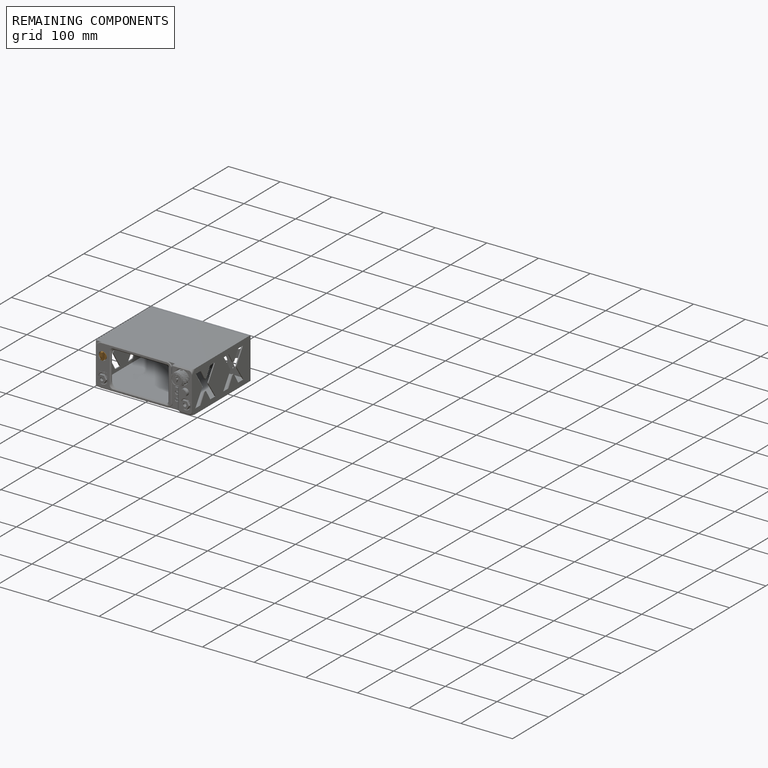
[diagram: remaining components — assembled]
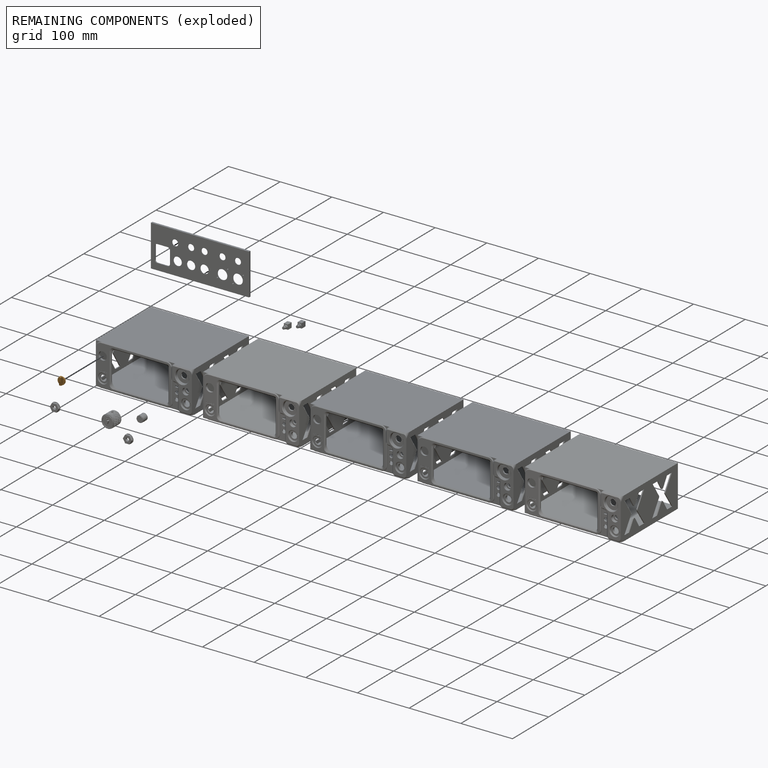
[diagram: remaining components — exploded]
REMAINING COMPONENTS (grouped) — the 1 components below fall outside the per-component tour by the significance rule stated above; both spotlight views highlight the whole group.
  P11: bounding box 15.9 x 14.4 x 12.8 mm, volume 419 mm^3. Held by: FASTENED mate "Fastened 2" to P1.
PROVENANCE & LICENSES
Assembly (occurrences, transforms, mates, per-part STEP geometry): AutoMate dataset, Zenodo record 7776208, CC0.
Construction recipes: CADFS (HuggingFace VladPyatov/CADFS, CC-BY-4.0, layered over the ABC dataset), FeatureScript reconstruction programs keyed by ABC model id.
Join: ABC meta listings map ABC model id -> Onshape documentId; within a shared document, parts are matched by geometric signature (bounding-box dims + volume at 0.1% relative tolerance, exact B-rep face/solid counts).
Verification: 1 of this assembly's 13 components carries a recipe attachment, and every attachment is mesh-verified: the CADFS STEP and the AutoMate member STEP were compared as meshes in their shared local frame (symmetric sampled-point-to-mesh distance); worst across the 1 attachment: below the mesh-comparison resolution (tessellation chordal tolerance ~0.309 mm) on a 206 mm part.
Renders: orthographic iso camera (az 35 / el 25); the floor grid conveys scale (grid pitch printed in each image; no ruler). In the exploded view each component is displaced by its stored offset vector: the offsets alone carry the explosion direction (mate normal/axis signs are not orientation cues and do not encode it), and separation distances are assigned per mate-chain, not proportionally to assembly-order depth.
